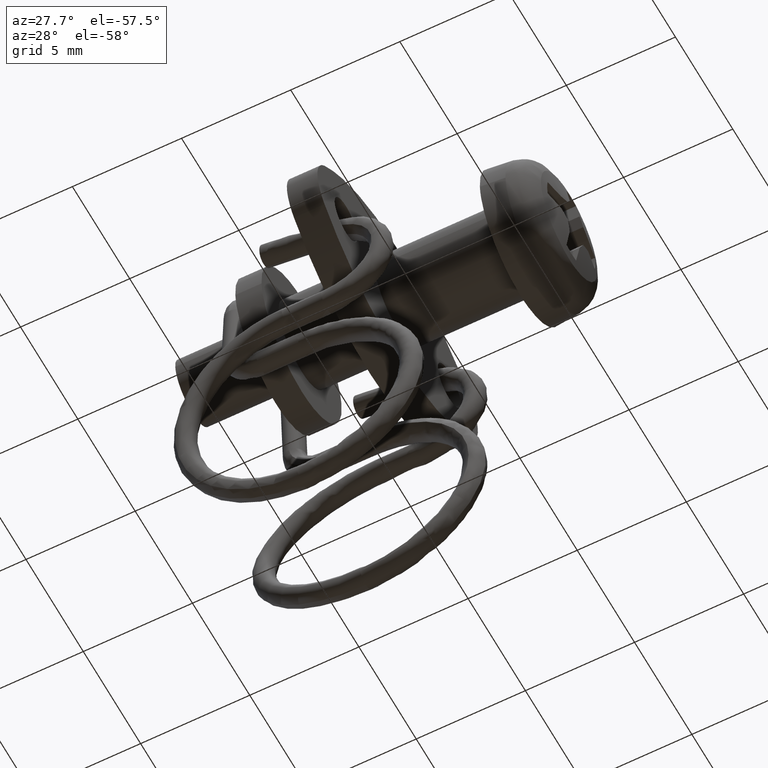
[diagram: clean part render]
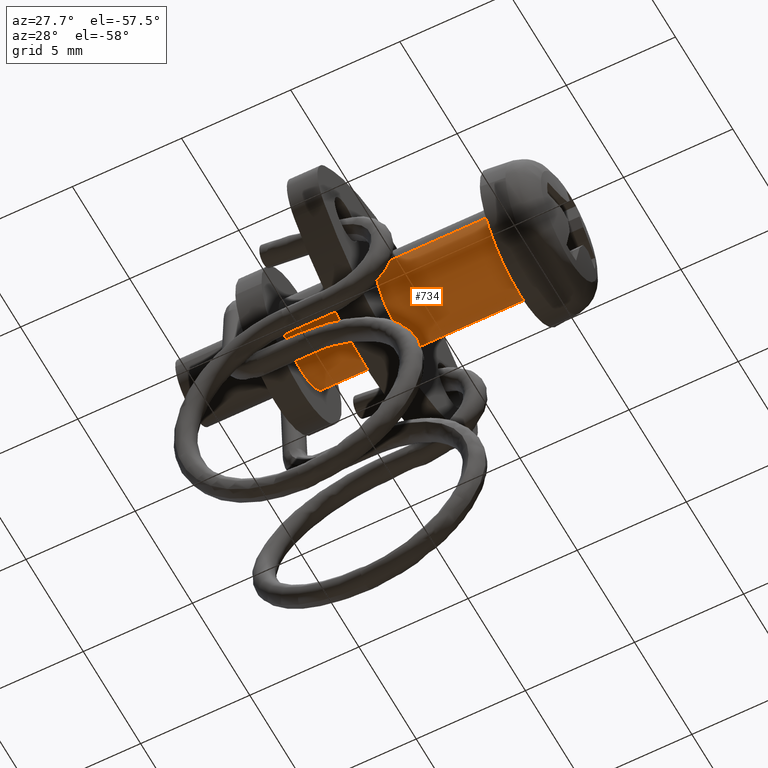
[diagram: same view with one face highlighted and labeled with its STEP entity id]
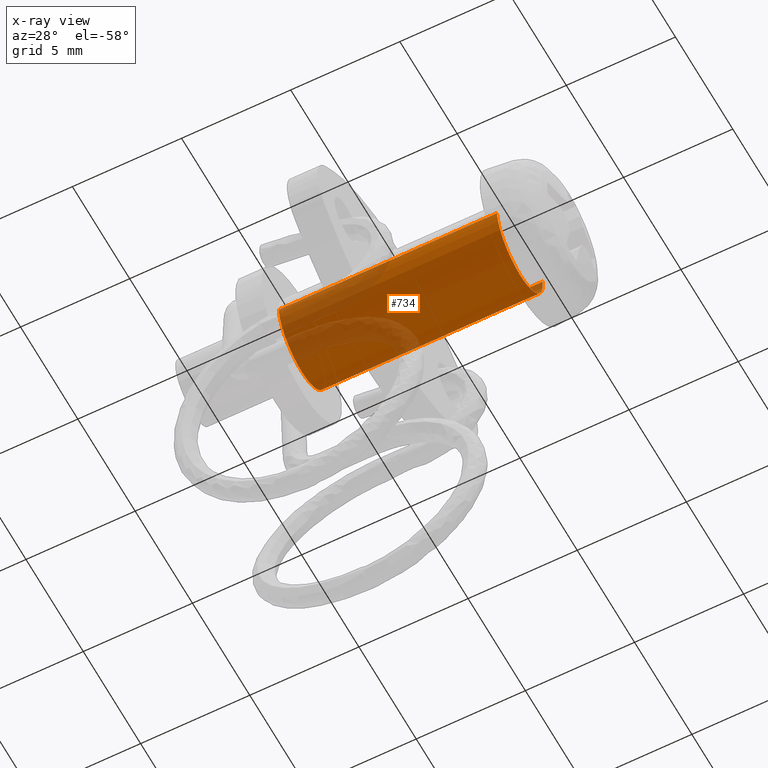
[diagram: x-ray of the same camera — body ghosted, the highlighted face saturated]
A machine part, auxiliary view. The second image highlights one B-rep face of the part: STEP entity #734.
The next image is the same camera in x-ray: the body ghosted, the highlighted face saturated — about 27% of this face is hidden behind the body in this view.
In plain terms, the highlighted face is a freeform B-spline surface patch.
Its self-contained STEP definition (entity closure, byte-faithful):
#632=CARTESIAN_POINT('',(0.249999999999992,1.986019052727332,0.236068469313517));
#633=CARTESIAN_POINT('',(0.249999999999992,1.992775230897211,0.179229457275955));
#634=CARTESIAN_POINT('',(0.249999999999992,1.996269596843733,0.122097079069714));
#635=CARTESIAN_POINT('',(0.249999999999992,2.118366675913447,-1.874172517774020));
#636=CARTESIAN_POINT('',(0.249999999999992,0.122097079069714,-1.996269596843733));
#637=CARTESIAN_POINT('',(0.249999999999992,-1.874172517774020,-2.118366675913447));
#638=CARTESIAN_POINT('',(0.249999999999992,-1.996269596843733,-0.122097079069714));
#639=CARTESIAN_POINT('',(-10.256249999999694,1.986019052727332,0.236068469313517));
#640=CARTESIAN_POINT('',(-10.256249999999696,1.992775230897211,0.179229457275955));
#641=CARTESIAN_POINT('',(-10.256249999999691,1.996269596843733,0.122097079069714));
#642=CARTESIAN_POINT('',(-10.256249999999694,2.118366675913447,-1.874172517774020));
#643=CARTESIAN_POINT('',(-10.256249999999691,0.122097079069714,-1.996269596843733));
#644=CARTESIAN_POINT('',(-10.256249999999694,-1.874172517774020,-2.118366675913447));
#645=CARTESIAN_POINT('',(-10.256249999999691,-1.996269596843733,-0.122097079069714));
#653=(BOUNDED_SURFACE()B_SPLINE_SURFACE(2,1,((#632,#639),(#633,#640),(#634,#641),(#635,#642),(#636,#643),(#637,#644),(#638,#645)),.UNSPECIFIED.,.F.,.F.,.U.)B_SPLINE_SURFACE_WITH_KNOTS((3,2,2,3),(2,2),(0.0,0.132548339959391,3.446256838944149,6.759965337928908),(0.0,10.506249999999691),.UNSPECIFIED.)GEOMETRIC_REPRESENTATION_ITEM()RATIONAL_B_SPLINE_SURFACE(((0.977505800795127,0.977505800795127),(0.988284271247462,0.988284271247462),(1.0,1.0),(0.707106781186548,0.707106781186548),(1.0,1.0),(0.707106781186548,0.707106781186548),(1.0,1.0)))REPRESENTATION_ITEM('')SURFACE());
#654=CARTESIAN_POINT('',(-9.999999999999700,1.986019052724380,0.236068469338358));
#655=VERTEX_POINT('',#654);
#656=CARTESIAN_POINT('',(-9.999999999999700,0.0,-2.0));
#657=VERTEX_POINT('',#656);
#658=CARTESIAN_POINT('',(-9.999999999999700,1.986019052724380,0.236068469338358));
#659=CARTESIAN_POINT('',(-9.999999999999700,2.000000000000000,0.118448239328924));
#660=CARTESIAN_POINT('',(-9.999999999999700,2.0,0.0));
#661=CARTESIAN_POINT('',(-9.999999999999700,2.000000000000000,-2.000000000000000));
#662=CARTESIAN_POINT('',(-9.999999999999700,0.0,-2.0));
#670=(BOUNDED_CURVE()B_SPLINE_CURVE(2,(#658,#659,#660,#661,#662),.UNSPECIFIED.,.F.,.U.)B_SPLINE_CURVE_WITH_KNOTS((3,2,3),(0.229562473511416,0.250000000000000,0.500000000000000),.UNSPECIFIED.)CURVE()GEOMETRIC_REPRESENTATION_ITEM()RATIONAL_B_SPLINE_CURVE((0.956026754179599,0.976055948328694,1.0,0.707106781186548,1.0))REPRESENTATION_ITEM(''));
#671=EDGE_CURVE('',#655,#657,#670,.T.);
#672=ORIENTED_EDGE('',*,*,#671,.F.);
#673=CARTESIAN_POINT('',(-1.084675E-016,1.986019052724380,0.236068469338358));
#674=VERTEX_POINT('',#673);
#675=CARTESIAN_POINT('',(-1.084675E-016,1.986019052724380,0.236068469338358));
#676=CARTESIAN_POINT('',(-9.999999999999700,1.986019052724380,0.236068469338358));
#677=QUASI_UNIFORM_CURVE('',1,(#675,#676),.UNSPECIFIED.,.F.,.U.);
#678=EDGE_CURVE('',#674,#655,#677,.T.);
#679=ORIENTED_EDGE('',*,*,#678,.F.);
#680=CARTESIAN_POINT('',(-4.440892E-016,0.0,-2.0));
#681=VERTEX_POINT('',#680);
#682=CARTESIAN_POINT('',(-1.084675E-016,1.986019052724380,0.236068469338358));
#683=CARTESIAN_POINT('',(-4.440892E-016,2.000000000000000,0.118448239328924));
#684=CARTESIAN_POINT('',(-4.440892E-016,2.0,0.0));
#685=CARTESIAN_POINT('',(-4.440892E-016,2.000000000000000,-2.000000000000000));
#686=CARTESIAN_POINT('',(-4.440892E-016,0.0,-2.0));
#694=(BOUNDED_CURVE()B_SPLINE_CURVE(2,(#682,#683,#684,#685,#686),.UNSPECIFIED.,.F.,.U.)B_SPLINE_CURVE_WITH_KNOTS((3,2,3),(0.229562473511416,0.250000000000000,0.500000000000000),.UNSPECIFIED.)CURVE()GEOMETRIC_REPRESENTATION_ITEM()RATIONAL_B_SPLINE_CURVE((0.956026754179599,0.976055948328694,1.0,0.707106781186548,1.0))REPRESENTATION_ITEM(''));
#695=EDGE_CURVE('',#674,#681,#694,.T.);
#696=ORIENTED_EDGE('',*,*,#695,.T.);
#697=CARTESIAN_POINT('',(-6.661338E-016,-1.996269638936529,-0.122096390854701));
#698=VERTEX_POINT('',#697);
#699=CARTESIAN_POINT('',(-4.440892E-016,0.0,-2.0));
#700=CARTESIAN_POINT('',(-4.440892E-016,-1.881413433471593,-2.000000000000000));
#701=CARTESIAN_POINT('',(-6.661338E-016,-1.996269638936529,-0.122096390854701));
#709=(BOUNDED_CURVE()B_SPLINE_CURVE(2,(#699,#700,#701),.UNSPECIFIED.,.F.,.U.)B_SPLINE_CURVE_WITH_KNOTS((3,3),(0.500000000000000,0.739333081213178),.UNSPECIFIED.)CURVE()GEOMETRIC_REPRESENTATION_ITEM()RATIONAL_B_SPLINE_CURVE((1.0,0.719603853899724,0.976072296651283))REPRESENTATION_ITEM(''));
#710=EDGE_CURVE('',#681,#698,#709,.T.);
#711=ORIENTED_EDGE('',*,*,#710,.T.);
#712=CARTESIAN_POINT('',(-9.999999999999702,-1.996269639463543,-0.122096382237994));
#713=VERTEX_POINT('',#712);
#714=CARTESIAN_POINT('',(-6.661338E-016,-1.996269638936529,-0.122096390854701));
#715=CARTESIAN_POINT('',(-9.999999999999702,-1.996269639463543,-0.122096382237994));
#716=QUASI_UNIFORM_CURVE('',1,(#714,#715),.UNSPECIFIED.,.F.,.U.);
#717=EDGE_CURVE('',#698,#713,#716,.T.);
#718=ORIENTED_EDGE('',*,*,#717,.T.);
#719=CARTESIAN_POINT('',(-9.999999999999700,0.0,-2.0));
#720=CARTESIAN_POINT('',(-9.999999999999700,-1.881413449743827,-2.0));
#721=CARTESIAN_POINT('',(-9.999999999999702,-1.996269639463543,-0.122096382237994));
#729=(BOUNDED_CURVE()B_SPLINE_CURVE(2,(#719,#720,#721),.UNSPECIFIED.,.F.,.U.)B_SPLINE_CURVE_WITH_KNOTS((3,3),(0.500000000000000,0.739333082702742),.UNSPECIFIED.)CURVE()GEOMETRIC_REPRESENTATION_ITEM()RATIONAL_B_SPLINE_CURVE((1.0,0.719603852154591,0.976072299843706))REPRESENTATION_ITEM(''));
#730=EDGE_CURVE('',#657,#713,#729,.T.);
#731=ORIENTED_EDGE('',*,*,#730,.F.);
#732=EDGE_LOOP('',(#672,#679,#696,#711,#718,#731));
#733=FACE_OUTER_BOUND('',#732,.T.);
#734=ADVANCED_FACE('',(#733),#653,.T.);